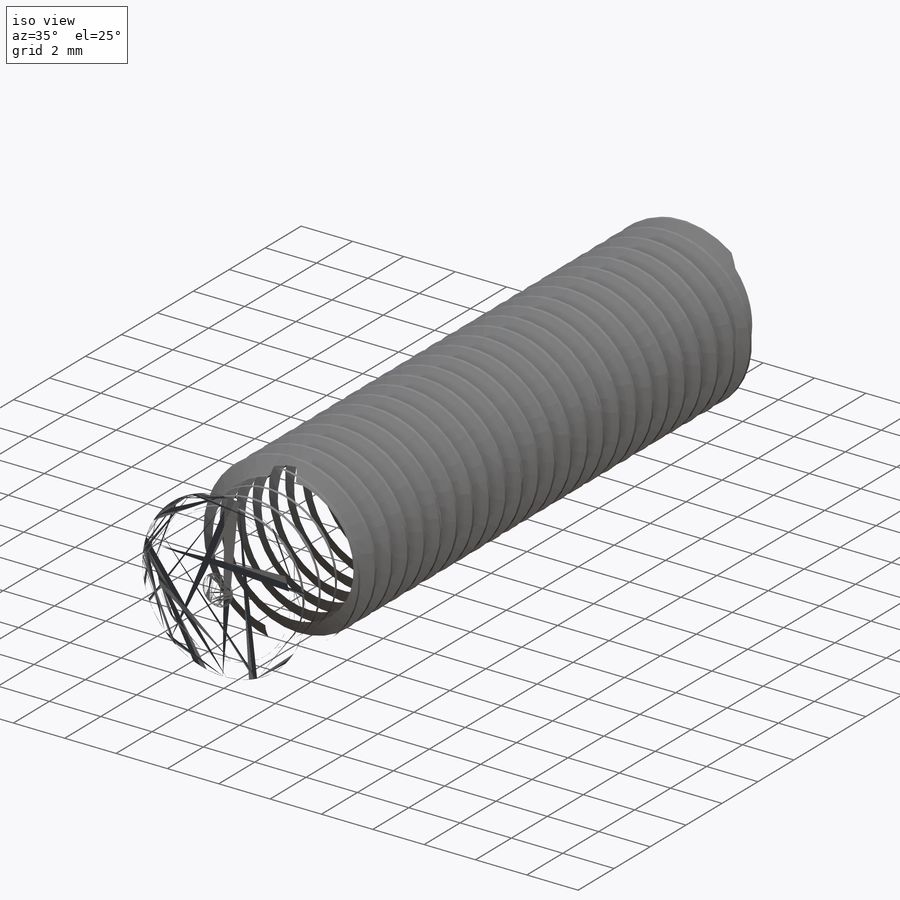
[diagram: iso view]
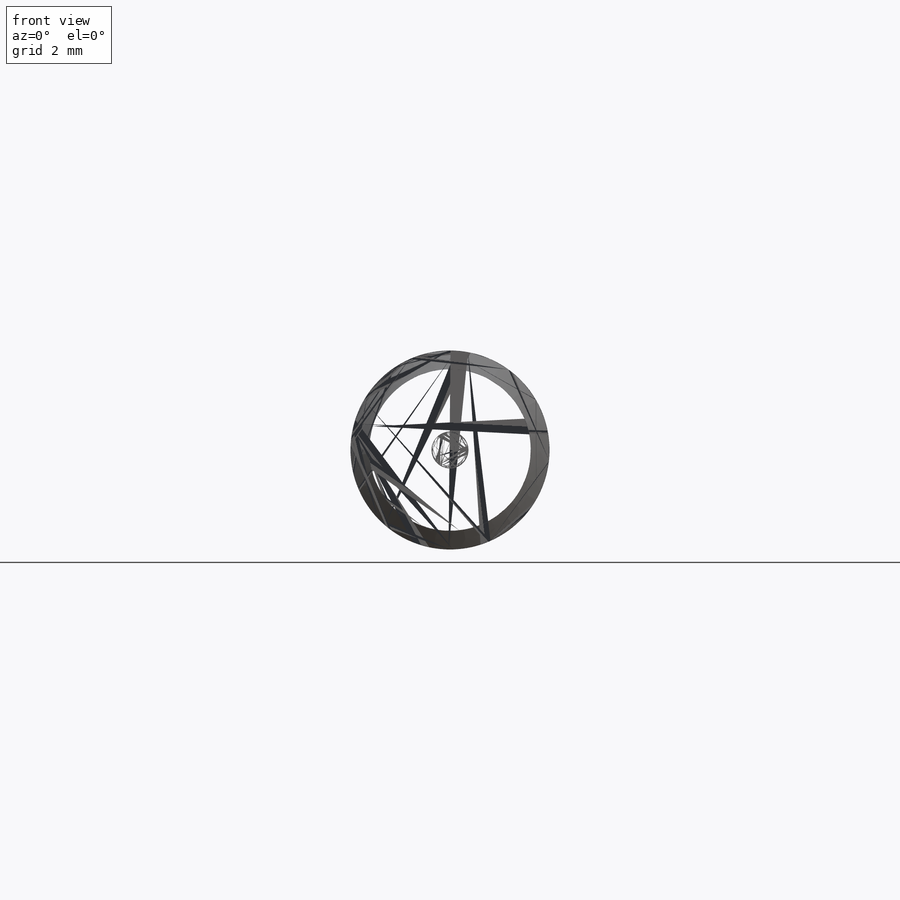
[diagram: front view]
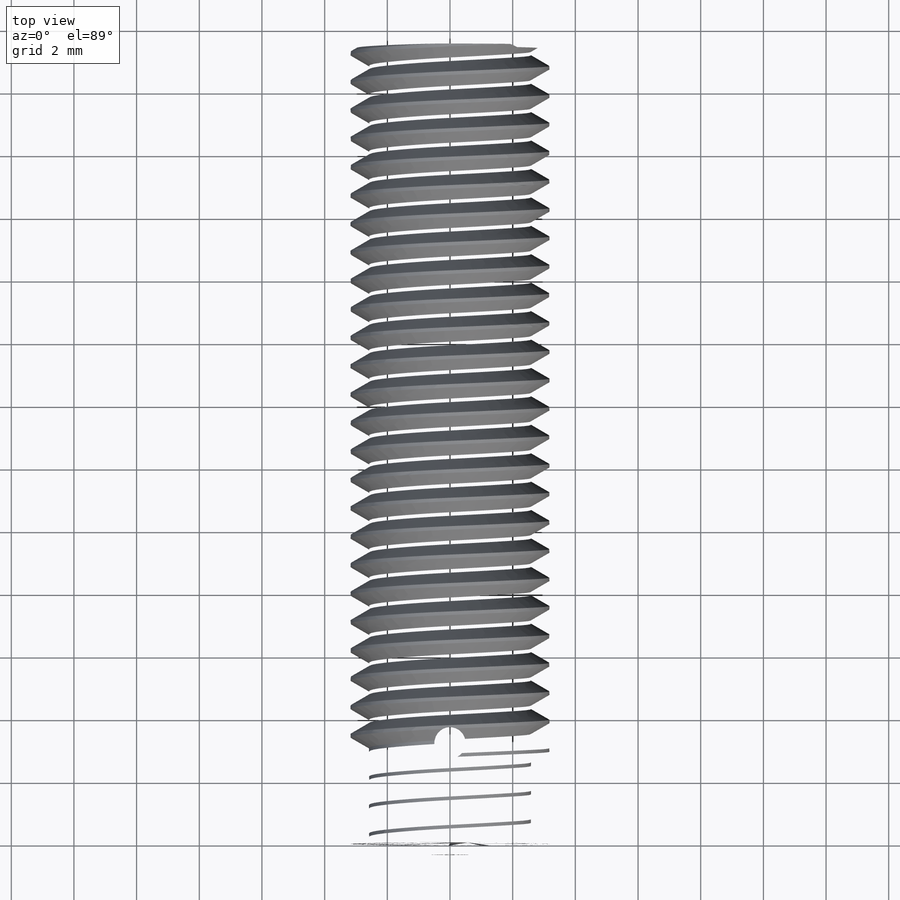
[diagram: top view]
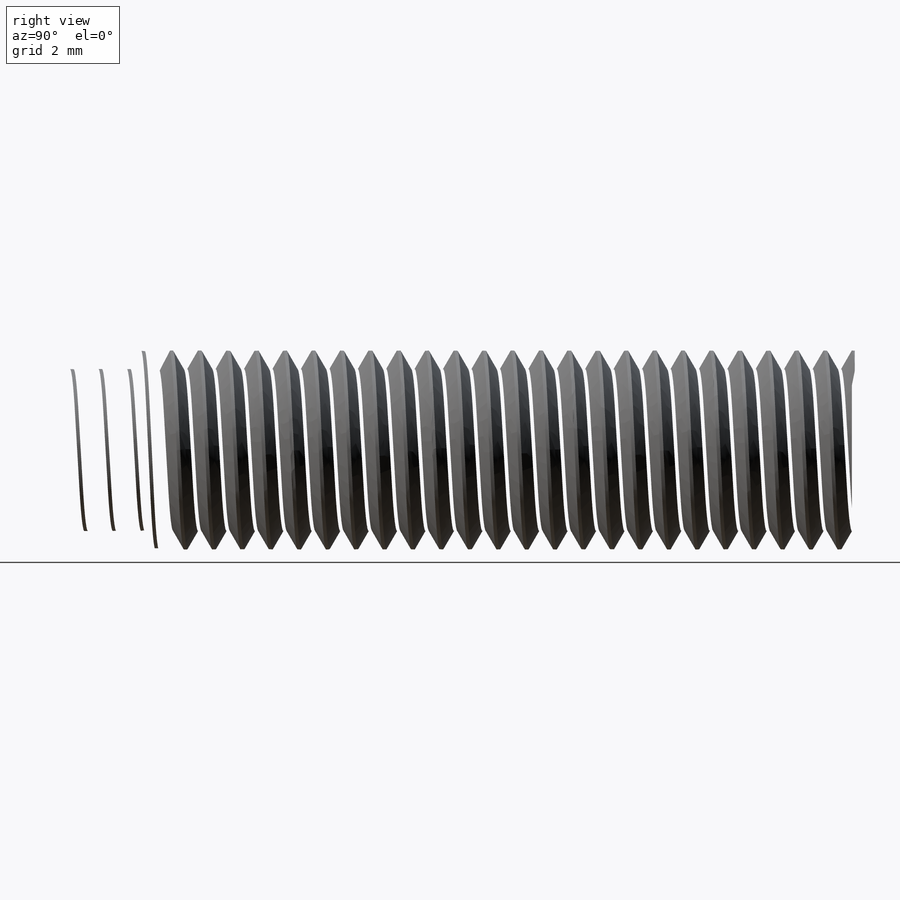
[diagram: right view]
SOLIDWORKS PART (.sldprt)
format: sldprt  version: not decoded by parser v0  size: 1,600,000 bytes
history: native  units: mm
features: sketch x13, cut_extrude x3, plane x3, extrude x2, cut_revolve x2, material x1, helix x1, sweep x1, revolve x1, chamfer x1, fillet x1 (+14 scaffold rows collapsed)
feature tree (43):
  scaffold x14  (default folders/planes/origin — collapsed)
  material  "AISI 304"
  sketch  "Sketch1"  dims[OD=6.35mm]
  extrude  "Extrude1"  Depth=76.2mm screw length=76.2mm
  sketch  "Sketch2"
  helix  "Helix/Spiral1"  Pitch=77.107143mm pitch=0.907143mm
  sketch  "Sketch3"  dims[c1.D1=~0.113393mm c1.D2=~0.453571mm c1.D3=~1.069256mm c2.D3=60.0deg]
  sweep  "Cut-Sweep1"
  sketch  "Sketch4"  dims[c1.D1=~3.187432mm c2.D1=55.0deg c2.D2=0.254mm]
  cut_revolve  "Cut-Revolve1"  Angle=360deg
  sketch  "Sketch5"  dims[c1.Thread min=25.4mm c1.D2=0.635mm c1.D3=0.3302mm c1.D1=0.3302mm c2.D2=0.127mm c2.D3=1.0541mm c3.D3=25.0deg]
  revolve  "partially thread"  Angle=360deg
  sketch  "Sketch6"  dims[head dia=9.525mm]
  extrude  "Extrude2"  Depth=6.35mm head depth=6.35mm
  sketch  "Sketch7"  dims[hex dia=4.7625mm]
  cut_extrude  "Cut-Extrude1"  Depth=3.571875mm
  sketch  "Sketch8"
  cut_extrude  "Cut-Extrude2"  [1 undecoded]
  chamfer  "Chamfer1"  Distance=0.47625mm Angle=45deg
  sketch  "Sketch9"  dims[D1=~4.989286mm]
  sketch  "Sketch11"  dims[c1.D1=4.7625mm c1.D2=~2.38125mm c2.D2=67.5deg c2.D3=32.0mm c2.D4=1.0mm c2.D5=6.0mm c2.D6=~25.130322mm c3.D6=67.5deg c3.D7=0.5mm c3.D4=0.5mm c3.D5=5.5mm c3.D8=0.6mm c3.D9=~6.91443mm c3.D3=3.0mm c4.D9=1.0mm c4.D10=3.175mm c4.D11=20.0mm c4.D12=1.2mm c4.D4=0.6mm c5.D12=0.2mm c5.D13=1.0mm c5.D14=12.0mm]
  cut_revolve  "Cut-Revolve3"  Angle=360deg
  sketch  "Sketch14"  dims[D1=1.5875mm D6=1.0mm D2=6.35mm D4=3.0mm D5=3.175mm D3=6.0]
  plane  "Plane1"
  plane  "Plane3"
  plane  "Plane2"
  sketch  "Sketch18"
  cut_extrude  "Cut-Extrude5"  [1 undecoded]
  sketch  "Sketch20"  dims[c1.D1=~3.481428mm c2.D1=71.5deg c2.D2=2.54mm c2.D3=2.0mm]
  fillet  "Fillet1"  Radius=1mm
decode coverage: 19 of 25 modeling features carry decoded parameters
note: ~ marks probable driven/reference dimensions
note: 2 parameter values undecoded
note: suppression state not decoded; provenance and decode notes live in map.json
